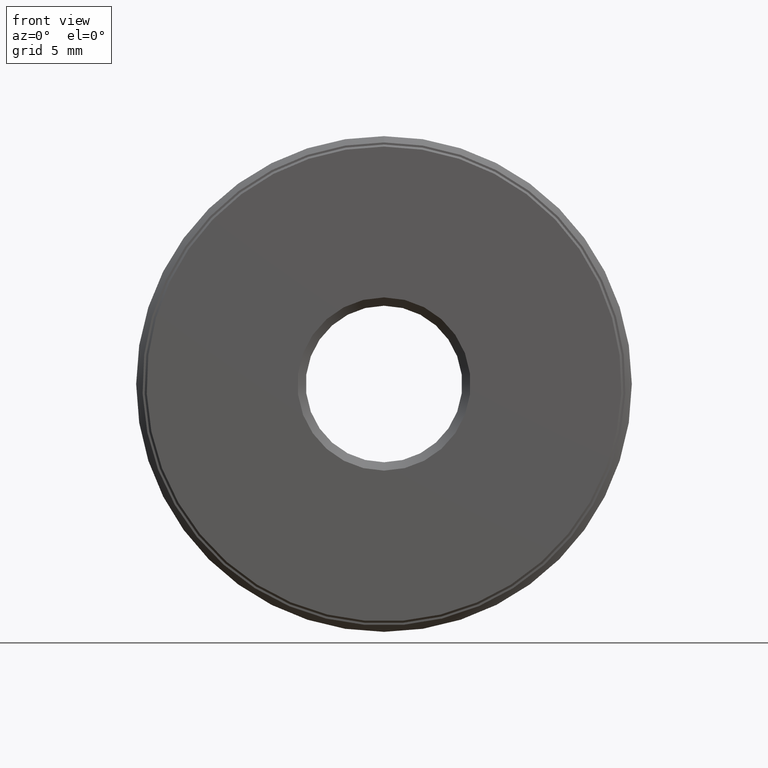
[diagram: clean part render]
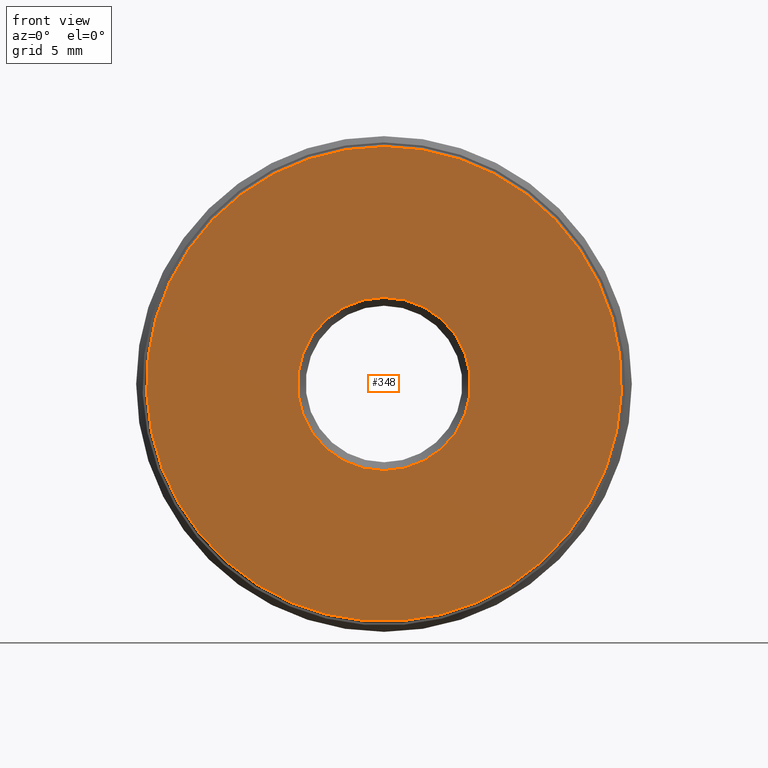
[diagram: same view with one face highlighted and labeled with its STEP entity id]
A machine part, front view. The second image highlights one B-rep face of the part: STEP entity #348.
In plain terms, the highlighted planar face has unit normal (-0, 1, 0).
Its self-contained STEP definition (entity closure, byte-faithful):
#17 = ORIENTED_EDGE ( 'NONE', *, *, #586, .T. ) ;
#21 = CARTESIAN_POINT ( 'NONE',  ( 0.0000000000000000000, -4.375225302352921300E-017, 0.0000000000000000000 ) ) ;
#25 = FACE_BOUND ( 'NONE', #341, .T. ) ;
#42 = DIRECTION ( 'NONE',  ( -0.0000000000000000000, 1.000000000000000000, 0.0000000000000000000 ) ) ;
#72 = DIRECTION ( 'NONE',  ( -0.0000000000000000000, 1.000000000000000000, -0.0000000000000000000 ) ) ;
#82 = ORIENTED_EDGE ( 'NONE', *, *, #125, .F. ) ;
#88 = CIRCLE ( 'NONE', #490, 0.2075000000000000500 ) ;
#125 = EDGE_CURVE ( 'NONE', #231, #231, #480, .T. ) ;
#157 = VERTEX_POINT ( 'NONE', #394 ) ;
#167 = DIRECTION ( 'NONE',  ( 0.0000000000000000000, 0.0000000000000000000, 1.000000000000000000 ) ) ;
#209 = FACE_OUTER_BOUND ( 'NONE', #212, .T. ) ;
#212 = EDGE_LOOP ( 'NONE', ( #82 ) ) ;
#231 = VERTEX_POINT ( 'NONE', #374 ) ;
#290 = CARTESIAN_POINT ( 'NONE',  ( 0.0000000000000000000, 1.707404996040164500E-017, 0.0000000000000000000 ) ) ;
#341 = EDGE_LOOP ( 'NONE', ( #17 ) ) ;
#348 = ADVANCED_FACE ( 'NONE', ( #209, #25 ), #460, .F. ) ;
#367 = CARTESIAN_POINT ( 'NONE',  ( -3.043709735366168800E-033, -1.333910153156378100E-017, 0.0000000000000000000 ) ) ;
#374 = CARTESIAN_POINT ( 'NONE',  ( 0.0000000000000000000, -4.375225302352921300E-017, 0.5687499999999998700 ) ) ;
#379 = DIRECTION ( 'NONE',  ( -0.0000000000000000000, 1.000000000000000000, -0.0000000000000000000 ) ) ;
#382 = DIRECTION ( 'NONE',  ( 0.0000000000000000000, 0.0000000000000000000, 1.000000000000000000 ) ) ;
#394 = CARTESIAN_POINT ( 'NONE',  ( 0.0000000000000000000, 1.707404996040164500E-017, 0.2075000000000000500 ) ) ;
#417 = DIRECTION ( 'NONE',  ( 0.0000000000000000000, 0.0000000000000000000, 1.000000000000000000 ) ) ;
#460 = PLANE ( 'NONE',  #547 ) ;
#480 = CIRCLE ( 'NONE', #524, 0.5687499999999998700 ) ;
#490 = AXIS2_PLACEMENT_3D ( 'NONE', #290, #379, #382 ) ;
#524 = AXIS2_PLACEMENT_3D ( 'NONE', #21, #72, #167 ) ;
#547 = AXIS2_PLACEMENT_3D ( 'NONE', #367, #42, #417 ) ;
#586 = EDGE_CURVE ( 'NONE', #157, #157, #88, .T. ) ;